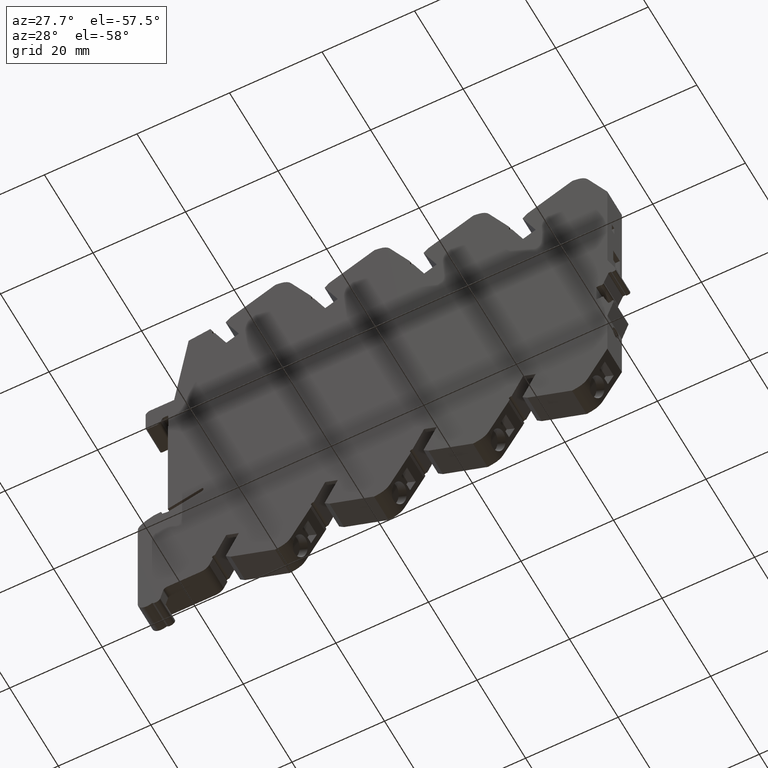
[diagram: clean part render]
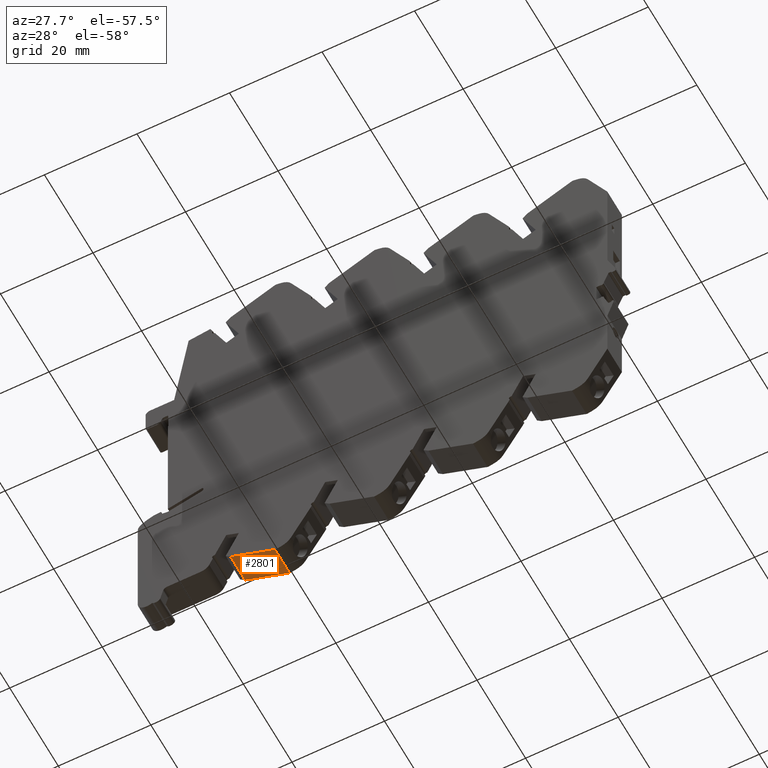
[diagram: same view with one face highlighted and labeled with its STEP entity id]
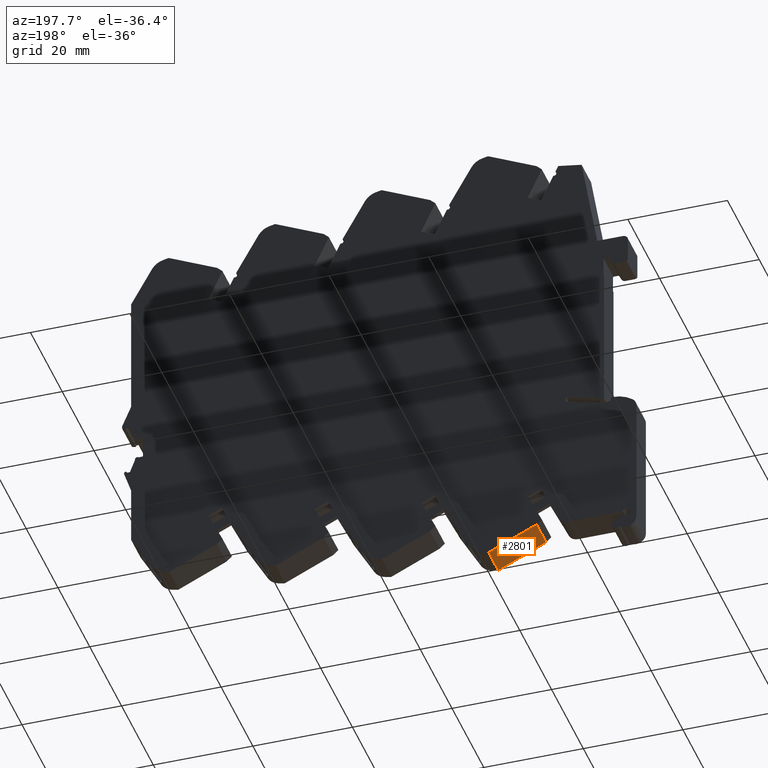
[diagram: same view with one face highlighted and labeled with its STEP entity id]
A machine part, auxiliary view. The second image highlights one B-rep face of the part: STEP entity #2801.
A second angle (auxiliary view) of the same face is appended — the face is thin or edge-on in the first view.
In plain terms, the highlighted planar face has unit normal (0.4226, 0, 0.9063).
Its self-contained STEP definition (entity closure, byte-faithful):
#503 = LINE ( 'NONE', #4507, #5509 ) ;
#681 = ORIENTED_EDGE ( 'NONE', *, *, #8074, .F. ) ;
#890 = EDGE_CURVE ( 'NONE', #4980, #5263, #8318, .T. ) ;
#1091 = DIRECTION ( 'NONE',  ( -1.000000000000000000, 0.000000000000000000, 0.000000000000000000 ) ) ;
#1341 = ORIENTED_EDGE ( 'NONE', *, *, #6257, .F. ) ;
#1693 = DIRECTION ( 'NONE',  ( 0.000000000000000000, 0.4226182966199911184, -0.9063077707721682863 ) ) ;
#1698 = ORIENTED_EDGE ( 'NONE', *, *, #890, .T. ) ;
#2282 = VECTOR ( 'NONE', #1693, 1000.000000000000114 ) ;
#2464 = ORIENTED_EDGE ( 'NONE', *, *, #8277, .T. ) ;
#2801 = ADVANCED_FACE ( 'NONE', ( #3696 ), #5143, .F. ) ;
#3013 = DIRECTION ( 'NONE',  ( 0.000000000000000000, 0.4226182966199911184, -0.9063077707721682863 ) ) ;
#3083 = CARTESIAN_POINT ( 'NONE',  ( 3.000000000000000000, -41.63255900000000054, -30.70050699999999111 ) ) ;
#3142 = CARTESIAN_POINT ( 'NONE',  ( -3.000000000000000000, -41.63255900000000054, -30.70050699999999111 ) ) ;
#3525 = VERTEX_POINT ( 'NONE', #4035 ) ;
#3685 = VECTOR ( 'NONE', #4836, 1000.000000000000000 ) ;
#3696 = FACE_OUTER_BOUND ( 'NONE', #6366, .T. ) ;
#3822 = CARTESIAN_POINT ( 'NONE',  ( 3.000000000000000000, -46.11747228031759960, -21.08258039885699375 ) ) ;
#4035 = CARTESIAN_POINT ( 'NONE',  ( 3.000000000000000000, -46.11747228031759960, -21.08258039885699375 ) ) ;
#4507 = CARTESIAN_POINT ( 'NONE',  ( 3.000000000000000000, -46.11747228031759960, -21.08258039885699375 ) ) ;
#4836 = DIRECTION ( 'NONE',  ( -1.000000000000000000, 0.000000000000000000, 0.000000000000000000 ) ) ;
#4980 = VERTEX_POINT ( 'NONE', #7652 ) ;
#4996 = CARTESIAN_POINT ( 'NONE',  ( 3.000000000000000000, -46.11747228031759960, -21.08258039885699375 ) ) ;
#5090 = DIRECTION ( 'NONE',  ( -1.000000000000000000, 0.000000000000000000, 0.000000000000000000 ) ) ;
#5117 = VERTEX_POINT ( 'NONE', #3083 ) ;
#5143 = PLANE ( 'NONE',  #7082 ) ;
#5263 = VERTEX_POINT ( 'NONE', #3142 ) ;
#5509 = VECTOR ( 'NONE', #5090, 1000.000000000000000 ) ;
#6257 = EDGE_CURVE ( 'NONE', #3525, #5117, #6394, .T. ) ;
#6366 = EDGE_LOOP ( 'NONE', ( #1698, #681, #1341, #2464 ) ) ;
#6394 = LINE ( 'NONE', #4996, #2282 ) ;
#6929 = LINE ( 'NONE', #7548, #3685 ) ;
#7023 = DIRECTION ( 'NONE',  ( 0.000000000000000000, 0.9063077707721683973, 0.4226182966199911739 ) ) ;
#7082 = AXIS2_PLACEMENT_3D ( 'NONE', #3822, #7023, #1091 ) ;
#7544 = CARTESIAN_POINT ( 'NONE',  ( -3.000000000000000000, -46.11747228031759960, -21.08258039885699375 ) ) ;
#7548 = CARTESIAN_POINT ( 'NONE',  ( 3.000000000000000000, -41.63255900000000054, -30.70050699999999111 ) ) ;
#7652 = CARTESIAN_POINT ( 'NONE',  ( -3.000000000000000000, -46.11747228031759960, -21.08258039885699375 ) ) ;
#8074 = EDGE_CURVE ( 'NONE', #5117, #5263, #6929, .T. ) ;
#8277 = EDGE_CURVE ( 'NONE', #3525, #4980, #503, .T. ) ;
#8318 = LINE ( 'NONE', #7544, #8496 ) ;
#8496 = VECTOR ( 'NONE', #3013, 1000.000000000000114 ) ;